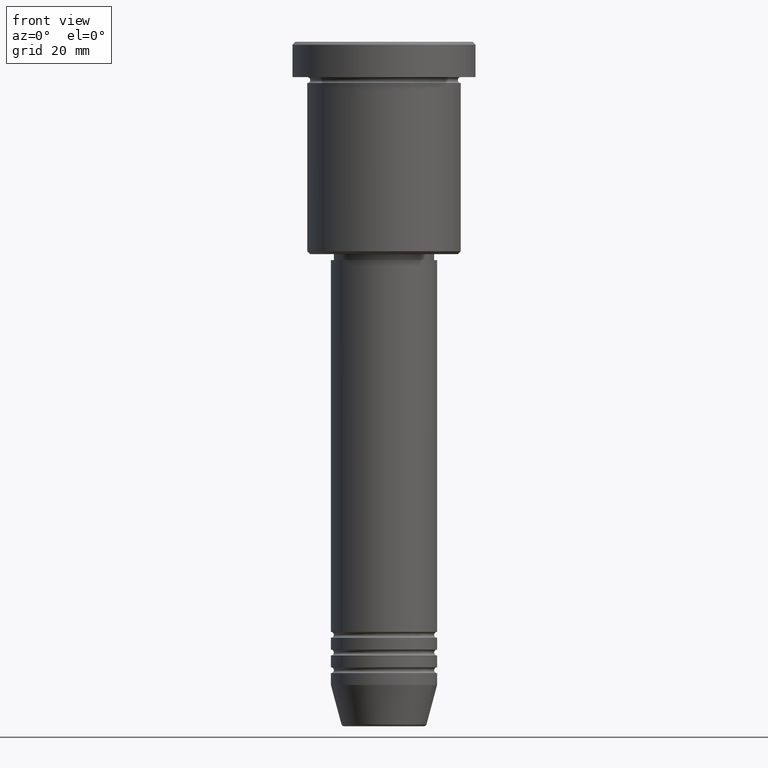
[diagram: clean part render]
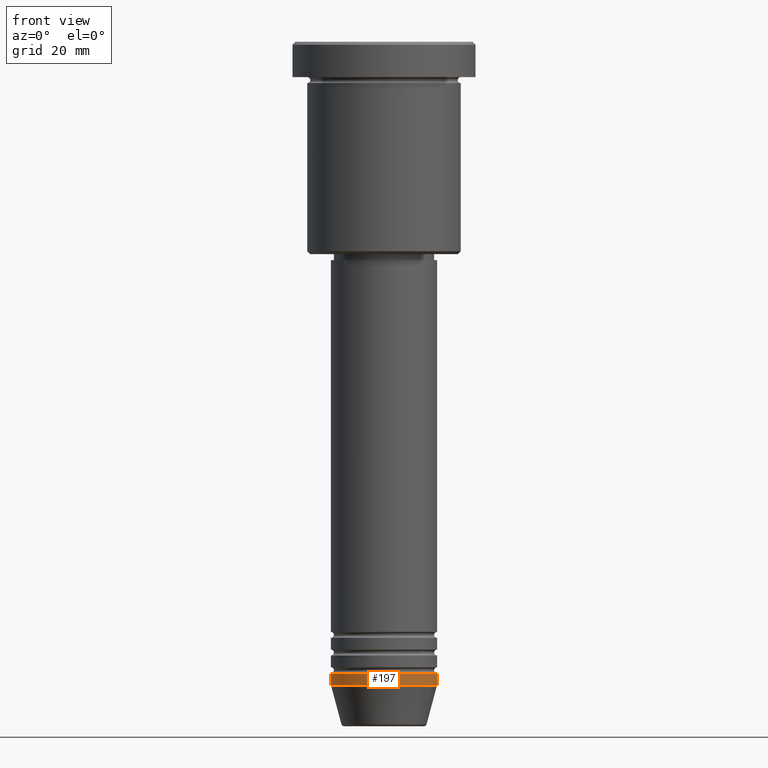
[diagram: same view with one face highlighted and labeled with its STEP entity id]
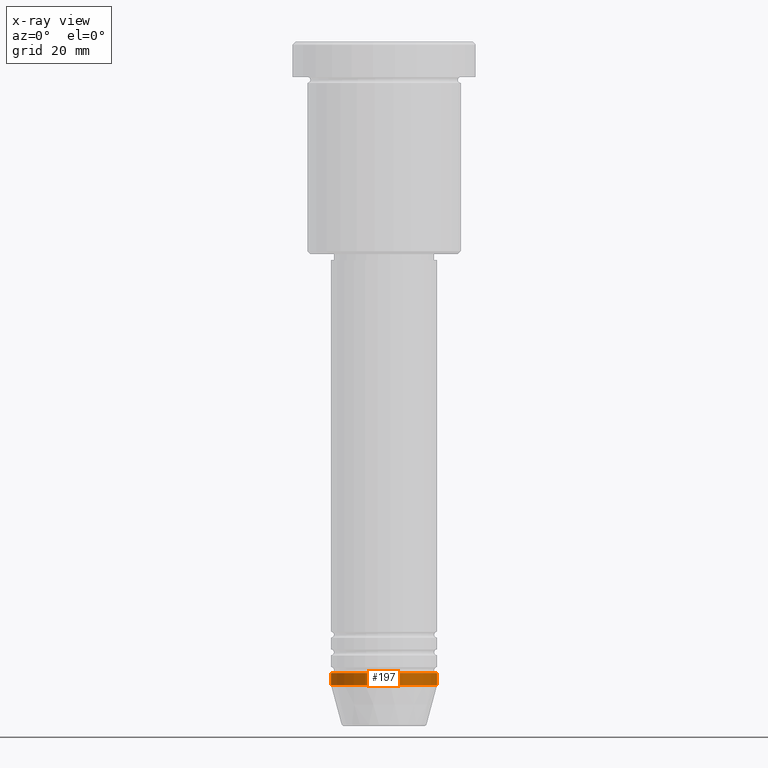
[diagram: x-ray of the same camera — body ghosted, the highlighted face saturated]
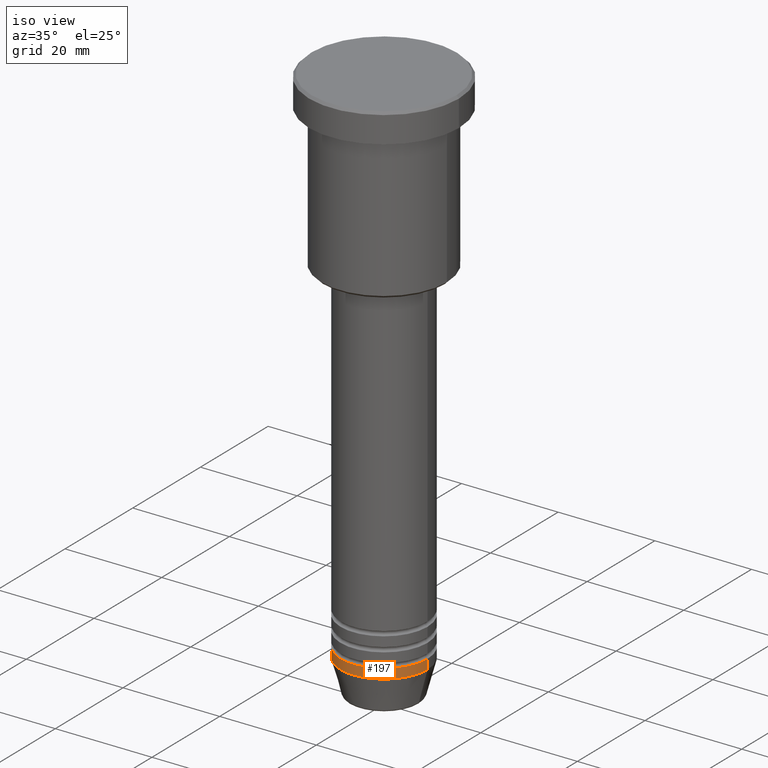
[diagram: same view with one face highlighted and labeled with its STEP entity id]
A machine part, front view. The second image highlights one B-rep face of the part: STEP entity #197.
The next image is the same camera in x-ray: the body ghosted, the highlighted face saturated — about 0% of this face is hidden behind the body in this view.
A second angle (iso view) of the same face is appended — the face is thin or edge-on in the first view.
In plain terms, the highlighted cylindrical surface (partial cylindrical patch) has radius 9 mm, axis along (-0, -0, 1).
Its self-contained STEP definition (entity closure, byte-faithful):
#69 = DIRECTION ( 'NONE',  ( -0.000000000000000000, -0.000000000000000000, 1.000000000000000000 ) ) ;
#96 = AXIS2_PLACEMENT_3D ( 'NONE', #1067, #69, #431 ) ;
#148 = VERTEX_POINT ( 'NONE', #459 ) ;
#197 = ADVANCED_FACE ( 'NONE', ( #769 ), #956, .T. ) ;
#210 = ORIENTED_EDGE ( 'NONE', *, *, #291, .F. ) ;
#214 = DIRECTION ( 'NONE',  ( 1.000000000000000000, 0.000000000000000000, 0.000000000000000000 ) ) ;
#218 = CARTESIAN_POINT ( 'NONE',  ( 0.000000000000000000, 0.000000000000000000, 0.000000000000000000 ) ) ;
#291 = EDGE_CURVE ( 'NONE', #973, #328, #673, .T. ) ;
#326 = DIRECTION ( 'NONE',  ( 1.000000000000000000, 0.000000000000000000, 0.000000000000000000 ) ) ;
#328 = VERTEX_POINT ( 'NONE', #759 ) ;
#355 = ORIENTED_EDGE ( 'NONE', *, *, #886, .T. ) ;
#363 = CIRCLE ( 'NONE', #96, 9.000000000000000000 ) ;
#414 = DIRECTION ( 'NONE',  ( -0.000000000000000000, -0.000000000000000000, 1.000000000000000000 ) ) ;
#418 = VECTOR ( 'NONE', #414, 1000.000000000000000 ) ;
#431 = DIRECTION ( 'NONE',  ( 1.000000000000000000, 0.000000000000000000, 0.000000000000000000 ) ) ;
#459 = CARTESIAN_POINT ( 'NONE',  ( 9.000000000000000000, 0.000000000000000000, -109.0000000000000142 ) ) ;
#596 = EDGE_LOOP ( 'NONE', ( #210, #790, #355, #943 ) ) ;
#598 = CARTESIAN_POINT ( 'NONE',  ( -9.000000000000000000, 1.102182119232617714E-15, 0.000000000000000000 ) ) ;
#673 = LINE ( 'NONE', #598, #418 ) ;
#689 = CARTESIAN_POINT ( 'NONE',  ( 0.000000000000000000, 0.000000000000000000, -109.0000000000000142 ) ) ;
#731 = AXIS2_PLACEMENT_3D ( 'NONE', #689, #955, #326 ) ;
#759 = CARTESIAN_POINT ( 'NONE',  ( -9.000000000000000000, 1.102182119232617714E-15, -107.0000000000000142 ) ) ;
#769 = FACE_OUTER_BOUND ( 'NONE', #596, .T. ) ;
#782 = LINE ( 'NONE', #1150, #1099 ) ;
#790 = ORIENTED_EDGE ( 'NONE', *, *, #839, .T. ) ;
#839 = EDGE_CURVE ( 'NONE', #973, #148, #911, .T. ) ;
#847 = DIRECTION ( 'NONE',  ( -0.000000000000000000, -0.000000000000000000, 1.000000000000000000 ) ) ;
#851 = EDGE_CURVE ( 'NONE', #328, #1036, #363, .T. ) ;
#886 = EDGE_CURVE ( 'NONE', #148, #1036, #782, .T. ) ;
#909 = AXIS2_PLACEMENT_3D ( 'NONE', #218, #847, #214 ) ;
#911 = CIRCLE ( 'NONE', #731, 9.000000000000000000 ) ;
#943 = ORIENTED_EDGE ( 'NONE', *, *, #851, .F. ) ;
#955 = DIRECTION ( 'NONE',  ( -0.000000000000000000, -0.000000000000000000, 1.000000000000000000 ) ) ;
#956 = CYLINDRICAL_SURFACE ( 'NONE', #909, 9.000000000000000000 ) ;
#973 = VERTEX_POINT ( 'NONE', #1167 ) ;
#1036 = VERTEX_POINT ( 'NONE', #1094 ) ;
#1067 = CARTESIAN_POINT ( 'NONE',  ( 0.000000000000000000, 0.000000000000000000, -107.0000000000000142 ) ) ;
#1094 = CARTESIAN_POINT ( 'NONE',  ( 9.000000000000000000, 0.000000000000000000, -107.0000000000000142 ) ) ;
#1099 = VECTOR ( 'NONE', #1139, 1000.000000000000000 ) ;
#1139 = DIRECTION ( 'NONE',  ( -0.000000000000000000, -0.000000000000000000, 1.000000000000000000 ) ) ;
#1150 = CARTESIAN_POINT ( 'NONE',  ( 9.000000000000000000, 0.000000000000000000, 0.000000000000000000 ) ) ;
#1167 = CARTESIAN_POINT ( 'NONE',  ( -9.000000000000000000, 1.102182119232617714E-15, -109.0000000000000142 ) ) ;